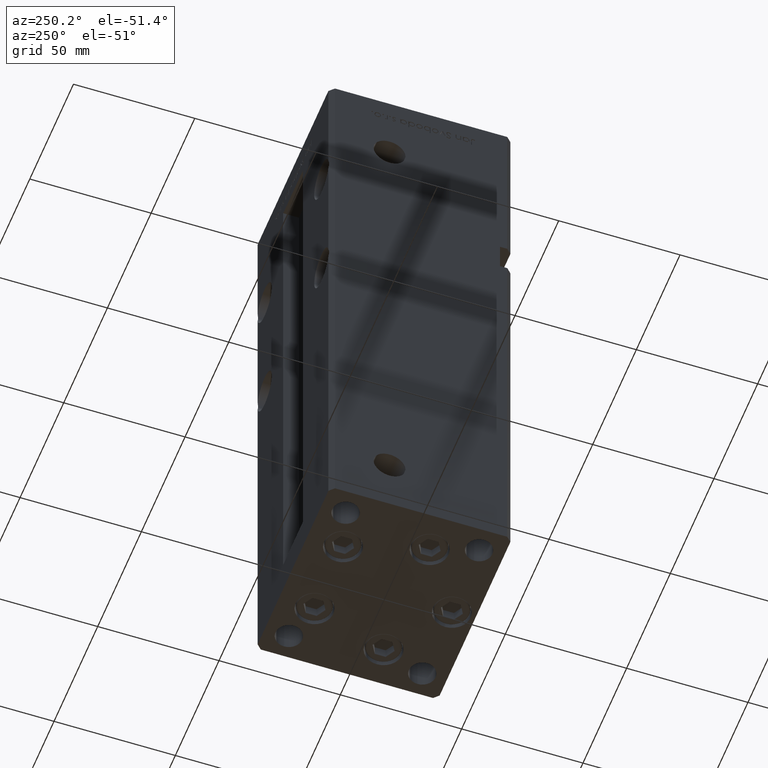
[diagram: clean part render]
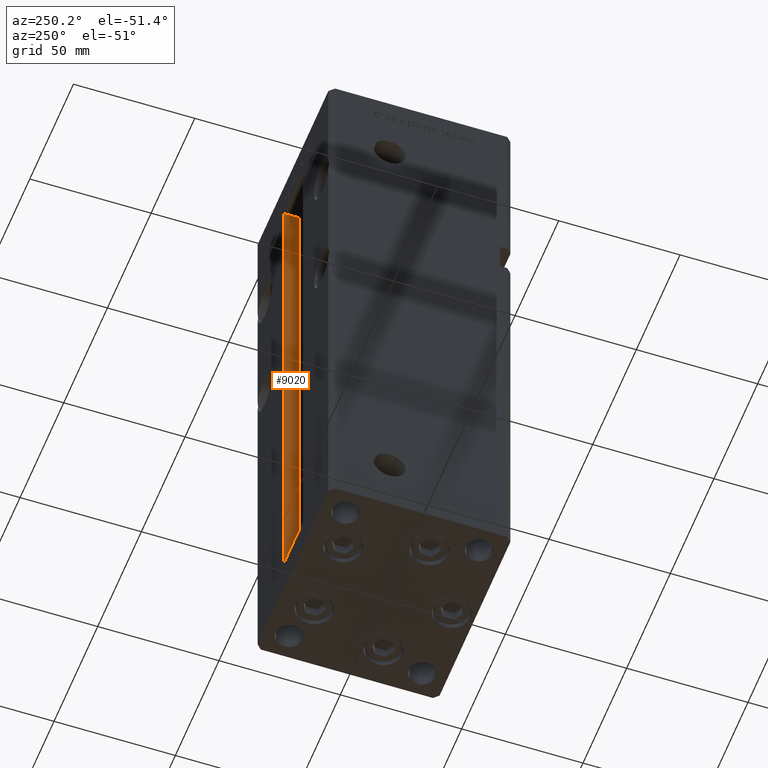
[diagram: same view with one face highlighted and labeled with its STEP entity id]
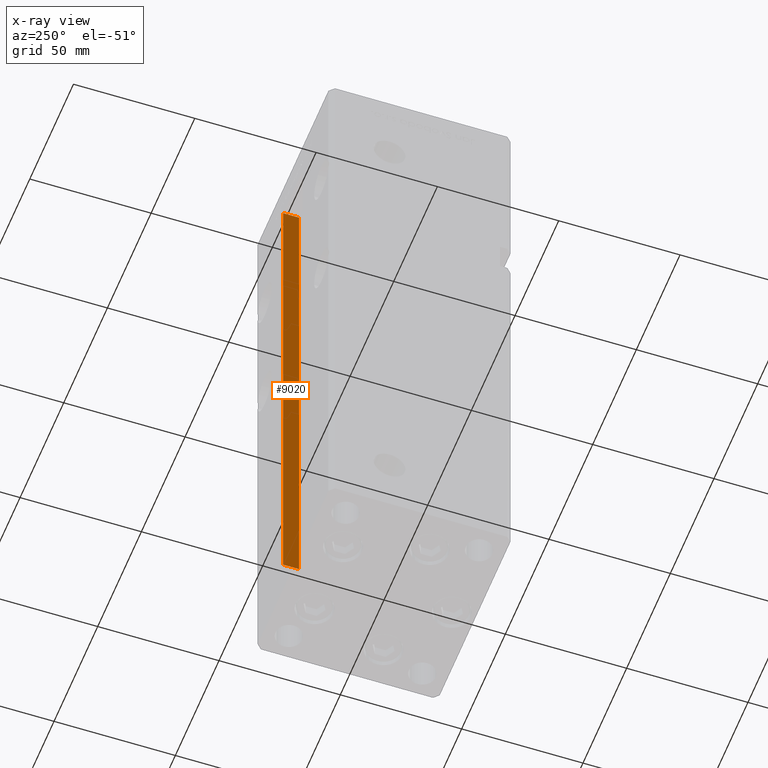
[diagram: x-ray of the same camera — body ghosted, the highlighted face saturated]
A machine part, auxiliary view. The second image highlights one B-rep face of the part: STEP entity #9020.
The next image is the same camera in x-ray: the body ghosted, the highlighted face saturated — about 0% of this face is hidden behind the body in this view.
In plain terms, the highlighted planar face has unit normal (1, 0, 0).
Its self-contained STEP definition (entity closure, byte-faithful):
#120 = VERTEX_POINT ( 'NONE', #42891 ) ;
#1373 = VERTEX_POINT ( 'NONE', #42669 ) ;
#1397 = ORIENTED_EDGE ( 'NONE', *, *, #43316, .F. ) ;
#4572 = LINE ( 'NONE', #8878, #45249 ) ;
#4847 = ORIENTED_EDGE ( 'NONE', *, *, #51295, .F. ) ;
#7426 = CARTESIAN_POINT ( 'NONE',  ( 11.24999999999999822, 31.00000000000000000, 0.000000000000000000 ) ) ;
#8386 = ORIENTED_EDGE ( 'NONE', *, *, #49120, .T. ) ;
#8536 = ORIENTED_EDGE ( 'NONE', *, *, #48353, .F. ) ;
#8593 = CARTESIAN_POINT ( 'NONE',  ( 11.24999999999999822, 0.000000000000000000, 218.5000000000000000 ) ) ;
#8878 = CARTESIAN_POINT ( 'NONE',  ( 11.24999999999999822, 31.00000000000000000, 0.000000000000000000 ) ) ;
#9020 = ADVANCED_FACE ( 'NONE', ( #15858 ), #31721, .F. ) ;
#13825 = CARTESIAN_POINT ( 'NONE',  ( 11.24999999999999112, 37.50000000000000000, 218.5000000000000000 ) ) ;
#15858 = FACE_OUTER_BOUND ( 'NONE', #33343, .T. ) ;
#18128 = VERTEX_POINT ( 'NONE', #13825 ) ;
#18412 = VERTEX_POINT ( 'NONE', #37407 ) ;
#22861 = DIRECTION ( 'NONE',  ( -0.000000000000000000, -0.000000000000000000, 1.000000000000000000 ) ) ;
#24442 = DIRECTION ( 'NONE',  ( 0.000000000000000000, 0.000000000000000000, -1.000000000000000000 ) ) ;
#27687 = DIRECTION ( 'NONE',  ( 1.000000000000000000, -0.000000000000000000, 0.000000000000000000 ) ) ;
#28081 = VECTOR ( 'NONE', #36148, 1000.000000000000000 ) ;
#28753 = LINE ( 'NONE', #8593, #49614 ) ;
#30382 = LINE ( 'NONE', #47031, #45055 ) ;
#31721 = PLANE ( 'NONE',  #37789 ) ;
#32238 = CARTESIAN_POINT ( 'NONE',  ( 11.24999999999999822, 31.00000000000000000, 0.000000000000000000 ) ) ;
#33314 = DIRECTION ( 'NONE',  ( -0.000000000000000000, -0.000000000000000000, 1.000000000000000000 ) ) ;
#33343 = EDGE_LOOP ( 'NONE', ( #1397, #8536, #8386, #4847 ) ) ;
#36148 = DIRECTION ( 'NONE',  ( 0.000000000000000000, 1.000000000000000000, 0.000000000000000000 ) ) ;
#37407 = CARTESIAN_POINT ( 'NONE',  ( 11.24999999999999822, 31.00000000000000000, 0.000000000000000000 ) ) ;
#37789 = AXIS2_PLACEMENT_3D ( 'NONE', #32238, #27687, #24442 ) ;
#42669 = CARTESIAN_POINT ( 'NONE',  ( 11.24999999999999822, 31.00000000000000000, 218.5000000000000000 ) ) ;
#42891 = CARTESIAN_POINT ( 'NONE',  ( 11.24999999999999822, 37.50000000000000000, 0.000000000000000000 ) ) ;
#43316 = EDGE_CURVE ( 'NONE', #120, #18128, #30382, .T. ) ;
#44213 = LINE ( 'NONE', #7426, #28081 ) ;
#45055 = VECTOR ( 'NONE', #22861, 1000.000000000000000 ) ;
#45249 = VECTOR ( 'NONE', #33314, 1000.000000000000000 ) ;
#47031 = CARTESIAN_POINT ( 'NONE',  ( 11.24999999999999822, 37.50000000000000000, 0.000000000000000000 ) ) ;
#48353 = EDGE_CURVE ( 'NONE', #18412, #120, #44213, .T. ) ;
#49120 = EDGE_CURVE ( 'NONE', #18412, #1373, #4572, .T. ) ;
#49614 = VECTOR ( 'NONE', #52945, 1000.000000000000000 ) ;
#51295 = EDGE_CURVE ( 'NONE', #18128, #1373, #28753, .T. ) ;
#52945 = DIRECTION ( 'NONE',  ( -0.000000000000000000, -1.000000000000000000, 0.000000000000000000 ) ) ;